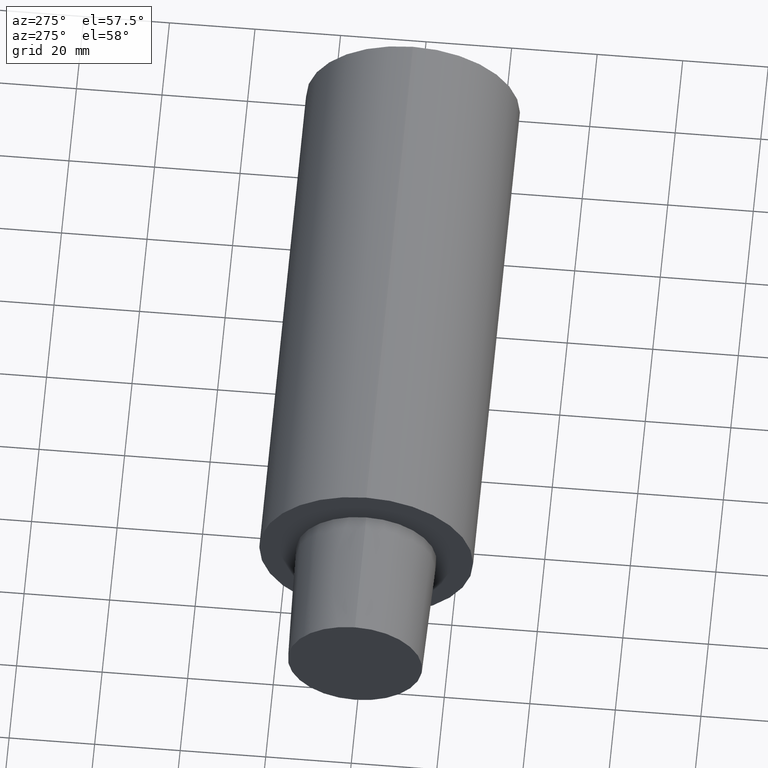
[diagram: clean part render]
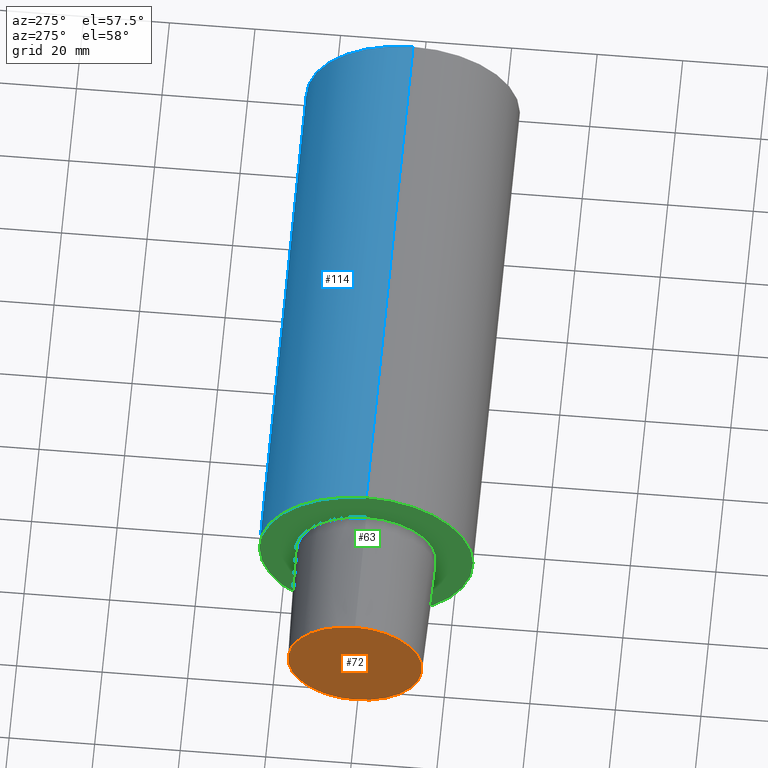
[diagram: same view with three faces highlighted in distinct colors, each labeled with its STEP entity id]
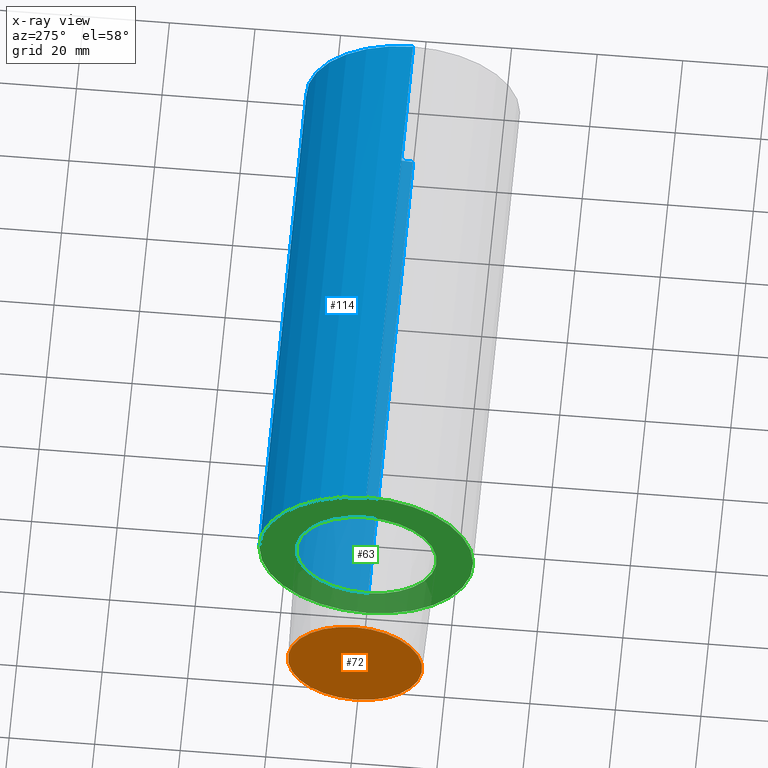
[diagram: x-ray of the same camera — body ghosted, the three highlighted faces saturated]
A machine part, auxiliary view with three faces highlighted in distinct colors.
The next image is the same camera in x-ray (body ghosted, the three faces saturated) — at least one of them is partly hidden behind the body in this view.
Their STEP definitions:

[orange] entity #72 — the highlighted planar face has unit normal (1, 0, 0).
#7 = CARTESIAN_POINT ( 'NONE',  ( -29.99999996940000102, 0.000000000000000000, -15.70494056296217700 ) ) ;
#17 = DIRECTION ( 'NONE',  ( 0.000000000000000000, 0.000000000000000000, 1.000000000000000000 ) ) ;
#56 = CIRCLE ( 'NONE', #198, 15.70494056296217700 ) ;
#70 = DIRECTION ( 'NONE',  ( 0.000000000000000000, 1.000000000000000000, 0.000000000000000000 ) ) ;
#72 = ADVANCED_FACE ( 'NONE', ( #157 ), #119, .F. ) ;
#74 = VERTEX_POINT ( 'NONE', #7 ) ;
#83 = VERTEX_POINT ( 'NONE', #242 ) ;
#111 = CARTESIAN_POINT ( 'NONE',  ( -29.99999996940000102, 0.000000000000000000, 0.000000000000000000 ) ) ;
#119 = PLANE ( 'NONE',  #126 ) ;
#122 = DIRECTION ( 'NONE',  ( 1.000000000000000000, 0.000000000000000000, 0.000000000000000000 ) ) ;
#126 = AXIS2_PLACEMENT_3D ( 'NONE', #243, #122, #70 ) ;
#128 = DIRECTION ( 'NONE',  ( -1.000000000000000000, 0.000000000000000000, 0.000000000000000000 ) ) ;
#129 = EDGE_LOOP ( 'NONE', ( #133, #149 ) ) ;
#133 = ORIENTED_EDGE ( 'NONE', *, *, #140, .T. ) ;
#138 = EDGE_CURVE ( 'NONE', #83, #74, #165, .T. ) ;
#140 = EDGE_CURVE ( 'NONE', #74, #83, #56, .T. ) ;
#145 = AXIS2_PLACEMENT_3D ( 'NONE', #111, #128, #255 ) ;
#149 = ORIENTED_EDGE ( 'NONE', *, *, #138, .T. ) ;
#157 = FACE_OUTER_BOUND ( 'NONE', #129, .T. ) ;
#165 = CIRCLE ( 'NONE', #145, 15.70494056296217700 ) ;
#192 = CARTESIAN_POINT ( 'NONE',  ( -29.99999996940000102, 0.000000000000000000, 0.000000000000000000 ) ) ;
#198 = AXIS2_PLACEMENT_3D ( 'NONE', #192, #209, #17 ) ;
#209 = DIRECTION ( 'NONE',  ( -1.000000000000000000, 0.000000000000000000, 0.000000000000000000 ) ) ;
#242 = CARTESIAN_POINT ( 'NONE',  ( -29.99999996940000102, 1.969228816626358703E-15, 15.70494056296217700 ) ) ;
#243 = CARTESIAN_POINT ( 'NONE',  ( -29.99999996940000102, 15.70494056296217700, 0.000000000000000000 ) ) ;
#255 = DIRECTION ( 'NONE',  ( 0.000000000000000000, 0.000000000000000000, 1.000000000000000000 ) ) ;

[blue] entity #114 — the highlighted cylindrical surface (partial cylindrical patch) has radius 25 mm, axis along (-1, 0, 0).
#2 = EDGE_CURVE ( 'NONE', #92, #183, #154, .T. ) ;
#8 = CARTESIAN_POINT ( 'NONE',  ( 124.9999998724999841, 3.061616994745535943E-15, -24.99999997449999967 ) ) ;
#11 = CARTESIAN_POINT ( 'NONE',  ( 0.000000000000000000, 3.061616994745535943E-15, -24.99999997449999967 ) ) ;
#16 = DIRECTION ( 'NONE',  ( 0.000000000000000000, 0.000000000000000000, 1.000000000000000000 ) ) ;
#19 = CARTESIAN_POINT ( 'NONE',  ( -29.99999996940000102, 3.061616994745535943E-15, -24.99999997449999967 ) ) ;
#37 = ORIENTED_EDGE ( 'NONE', *, *, #2, .T. ) ;
#38 = CARTESIAN_POINT ( 'NONE',  ( 0.000000000000000000, 0.000000000000000000, 24.99999997449999967 ) ) ;
#51 = CIRCLE ( 'NONE', #211, 24.99999997449999967 ) ;
#54 = CYLINDRICAL_SURFACE ( 'NONE', #241, 24.99999997449999967 ) ;
#57 = ORIENTED_EDGE ( 'NONE', *, *, #239, .T. ) ;
#78 = CARTESIAN_POINT ( 'NONE',  ( 124.9999998724999841, 0.000000000000000000, 24.99999997449999967 ) ) ;
#86 = VECTOR ( 'NONE', #188, 1000.000000000000000 ) ;
#92 = VERTEX_POINT ( 'NONE', #8 ) ;
#94 = CARTESIAN_POINT ( 'NONE',  ( -29.99999996940000102, 0.000000000000000000, 24.99999997449999967 ) ) ;
#109 = DIRECTION ( 'NONE',  ( -1.000000000000000000, 0.000000000000000000, 0.000000000000000000 ) ) ;
#112 = ORIENTED_EDGE ( 'NONE', *, *, #237, .F. ) ;
#113 = CARTESIAN_POINT ( 'NONE',  ( 0.000000000000000000, 0.000000000000000000, 0.000000000000000000 ) ) ;
#114 = ADVANCED_FACE ( 'NONE', ( #197 ), #54, .T. ) ;
#115 = EDGE_LOOP ( 'NONE', ( #57, #37, #174, #112 ) ) ;
#131 = CARTESIAN_POINT ( 'NONE',  ( -29.99999996940000102, 0.000000000000000000, 0.000000000000000000 ) ) ;
#151 = CARTESIAN_POINT ( 'NONE',  ( 124.9999998724999841, 0.000000000000000000, 0.000000000000000000 ) ) ;
#154 = LINE ( 'NONE', #19, #231 ) ;
#156 = CIRCLE ( 'NONE', #217, 24.99999997449999967 ) ;
#172 = EDGE_CURVE ( 'NONE', #233, #183, #156, .T. ) ;
#174 = ORIENTED_EDGE ( 'NONE', *, *, #172, .F. ) ;
#183 = VERTEX_POINT ( 'NONE', #11 ) ;
#184 = DIRECTION ( 'NONE',  ( 0.000000000000000000, 0.000000000000000000, 1.000000000000000000 ) ) ;
#188 = DIRECTION ( 'NONE',  ( -1.000000000000000000, 0.000000000000000000, 0.000000000000000000 ) ) ;
#197 = FACE_OUTER_BOUND ( 'NONE', #115, .T. ) ;
#206 = DIRECTION ( 'NONE',  ( -1.000000000000000000, 0.000000000000000000, 0.000000000000000000 ) ) ;
#211 = AXIS2_PLACEMENT_3D ( 'NONE', #151, #206, #16 ) ;
#213 = VERTEX_POINT ( 'NONE', #78 ) ;
#217 = AXIS2_PLACEMENT_3D ( 'NONE', #113, #222, #184 ) ;
#222 = DIRECTION ( 'NONE',  ( -1.000000000000000000, 0.000000000000000000, 0.000000000000000000 ) ) ;
#231 = VECTOR ( 'NONE', #238, 1000.000000000000000 ) ;
#233 = VERTEX_POINT ( 'NONE', #38 ) ;
#237 = EDGE_CURVE ( 'NONE', #213, #233, #251, .T. ) ;
#238 = DIRECTION ( 'NONE',  ( -1.000000000000000000, 0.000000000000000000, 0.000000000000000000 ) ) ;
#239 = EDGE_CURVE ( 'NONE', #213, #92, #51, .T. ) ;
#241 = AXIS2_PLACEMENT_3D ( 'NONE', #131, #109, #253 ) ;
#251 = LINE ( 'NONE', #94, #86 ) ;
#253 = DIRECTION ( 'NONE',  ( 0.000000000000000000, 0.000000000000000000, 1.000000000000000000 ) ) ;

[green] entity #63 — the highlighted planar face has unit normal (1, 0, 0).
#10 = EDGE_LOOP ( 'NONE', ( #187, #144 ) ) ;
#11 = CARTESIAN_POINT ( 'NONE',  ( 0.000000000000000000, 3.061616994745535943E-15, -24.99999997449999967 ) ) ;
#15 = VERTEX_POINT ( 'NONE', #41 ) ;
#21 = EDGE_CURVE ( 'NONE', #183, #233, #104, .T. ) ;
#22 = CARTESIAN_POINT ( 'NONE',  ( 0.000000000000000000, 0.000000000000000000, 0.000000000000000000 ) ) ;
#25 = AXIS2_PLACEMENT_3D ( 'NONE', #22, #99, #62 ) ;
#32 = ORIENTED_EDGE ( 'NONE', *, *, #40, .F. ) ;
#36 = CARTESIAN_POINT ( 'NONE',  ( 0.000000000000000000, 2.015157114129614578E-15, 16.45500658257258664 ) ) ;
#38 = CARTESIAN_POINT ( 'NONE',  ( 0.000000000000000000, 0.000000000000000000, 24.99999997449999967 ) ) ;
#40 = EDGE_CURVE ( 'NONE', #203, #15, #215, .T. ) ;
#41 = CARTESIAN_POINT ( 'NONE',  ( 0.000000000000000000, 0.000000000000000000, -16.45500658257258664 ) ) ;
#42 = PLANE ( 'NONE',  #61 ) ;
#60 = DIRECTION ( 'NONE',  ( -1.000000000000000000, 0.000000000000000000, 0.000000000000000000 ) ) ;
#61 = AXIS2_PLACEMENT_3D ( 'NONE', #118, #136, #85 ) ;
#62 = DIRECTION ( 'NONE',  ( 0.000000000000000000, 0.000000000000000000, 1.000000000000000000 ) ) ;
#63 = ADVANCED_FACE ( 'NONE', ( #135, #216 ), #42, .F. ) ;
#77 = EDGE_LOOP ( 'NONE', ( #194, #32 ) ) ;
#82 = EDGE_CURVE ( 'NONE', #15, #203, #98, .T. ) ;
#85 = DIRECTION ( 'NONE',  ( 0.000000000000000000, 1.000000000000000000, 0.000000000000000000 ) ) ;
#98 = CIRCLE ( 'NONE', #171, 16.45500658257258664 ) ;
#99 = DIRECTION ( 'NONE',  ( -1.000000000000000000, 0.000000000000000000, 0.000000000000000000 ) ) ;
#101 = AXIS2_PLACEMENT_3D ( 'NONE', #234, #60, #252 ) ;
#104 = CIRCLE ( 'NONE', #101, 24.99999997449999967 ) ;
#113 = CARTESIAN_POINT ( 'NONE',  ( 0.000000000000000000, 0.000000000000000000, 0.000000000000000000 ) ) ;
#118 = CARTESIAN_POINT ( 'NONE',  ( 0.000000000000000000, 24.99999997449999967, 0.000000000000000000 ) ) ;
#120 = CARTESIAN_POINT ( 'NONE',  ( 0.000000000000000000, 0.000000000000000000, 0.000000000000000000 ) ) ;
#124 = DIRECTION ( 'NONE',  ( 0.000000000000000000, 0.000000000000000000, 1.000000000000000000 ) ) ;
#135 = FACE_BOUND ( 'NONE', #77, .T. ) ;
#136 = DIRECTION ( 'NONE',  ( 1.000000000000000000, 0.000000000000000000, 0.000000000000000000 ) ) ;
#144 = ORIENTED_EDGE ( 'NONE', *, *, #21, .T. ) ;
#156 = CIRCLE ( 'NONE', #217, 24.99999997449999967 ) ;
#161 = DIRECTION ( 'NONE',  ( -1.000000000000000000, 0.000000000000000000, 0.000000000000000000 ) ) ;
#171 = AXIS2_PLACEMENT_3D ( 'NONE', #120, #161, #124 ) ;
#172 = EDGE_CURVE ( 'NONE', #233, #183, #156, .T. ) ;
#183 = VERTEX_POINT ( 'NONE', #11 ) ;
#184 = DIRECTION ( 'NONE',  ( 0.000000000000000000, 0.000000000000000000, 1.000000000000000000 ) ) ;
#187 = ORIENTED_EDGE ( 'NONE', *, *, #172, .T. ) ;
#194 = ORIENTED_EDGE ( 'NONE', *, *, #82, .F. ) ;
#203 = VERTEX_POINT ( 'NONE', #36 ) ;
#215 = CIRCLE ( 'NONE', #25, 16.45500658257258664 ) ;
#216 = FACE_OUTER_BOUND ( 'NONE', #10, .T. ) ;
#217 = AXIS2_PLACEMENT_3D ( 'NONE', #113, #222, #184 ) ;
#222 = DIRECTION ( 'NONE',  ( -1.000000000000000000, 0.000000000000000000, 0.000000000000000000 ) ) ;
#233 = VERTEX_POINT ( 'NONE', #38 ) ;
#234 = CARTESIAN_POINT ( 'NONE',  ( 0.000000000000000000, 0.000000000000000000, 0.000000000000000000 ) ) ;
#252 = DIRECTION ( 'NONE',  ( 0.000000000000000000, 0.000000000000000000, 1.000000000000000000 ) ) ;